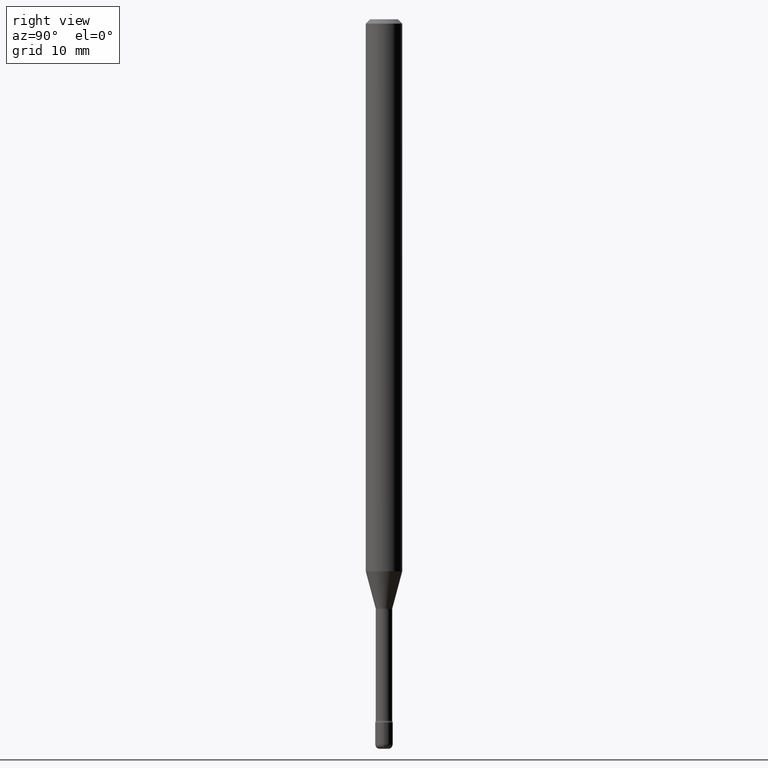
[diagram: clean part render]
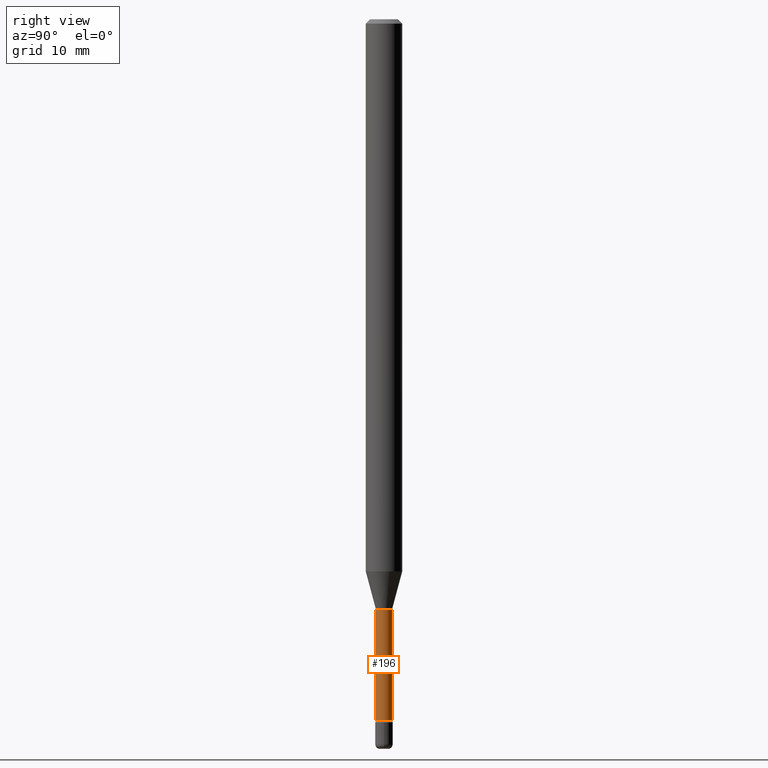
[diagram: same view with one face highlighted and labeled with its STEP entity id]
A machine part, right view. The second image highlights one B-rep face of the part: STEP entity #196.
In plain terms, the highlighted cylindrical surface (edge-blend (fillet) strip) has radius 0.7163 mm, axis along (-0, 0, 1).
Its self-contained STEP definition (entity closure, byte-faithful):
#1 = DIRECTION ( 'NONE',  ( -2.445549682807936912E-29, 3.491365518916084004E-15, 1.000000000000000000 ) ) ;
#3 = CARTESIAN_POINT ( 'NONE',  ( -1.169113584055446105E-44, 1.669184350826100908E-30, 4.780733988912460139E-16 ) ) ;
#71 = CARTESIAN_POINT ( 'NONE',  ( 4.944839800127768630E-29, -7.059453053068826895E-15, -2.021974787463811207 ) ) ;
#73 = EDGE_CURVE ( 'NONE', #337, #195, #118, .T. ) ;
#85 = EDGE_LOOP ( 'NONE', ( #356, #105, #541, #146 ) ) ;
#94 = FACE_OUTER_BOUND ( 'NONE', #85, .T. ) ;
#105 = ORIENTED_EDGE ( 'NONE', *, *, #73, .T. ) ;
#107 = DIRECTION ( 'NONE',  ( -2.445549682807936632E-29, 3.491365518916083609E-15, 1.000000000000000000 ) ) ;
#114 = CARTESIAN_POINT ( 'NONE',  ( 2.003730514843482726E-16, 0.02820000000000000631, 3.796168912578124951E-16 ) ) ;
#118 = LINE ( 'NONE', #114, #524 ) ;
#126 = DIRECTION ( 'NONE',  ( -6.982962677686265133E-15, -1.000000000000000000, 0.000000000000000000 ) ) ;
#128 = EDGE_CURVE ( 'NONE', #463, #195, #493, .T. ) ;
#139 = CARTESIAN_POINT ( 'NONE',  ( -1.969195475107527270E-16, -0.02820000000000000631, 5.765299065246797300E-16 ) ) ;
#141 = CIRCLE ( 'NONE', #529, 0.02820000000000000631 ) ;
#146 = ORIENTED_EDGE ( 'NONE', *, *, #267, .F. ) ;
#195 = VERTEX_POINT ( 'NONE', #518 ) ;
#196 = ADVANCED_FACE ( 'NONE', ( #94 ), #302, .T. ) ;
#200 = CARTESIAN_POINT ( 'NONE',  ( 2.067679361062481029E-16, 0.02819999999999161719, -2.402875394747777449 ) ) ;
#257 = CARTESIAN_POINT ( 'NONE',  ( 5.876351159452423787E-29, -8.389316299474264724E-15, -2.402875394747777449 ) ) ;
#267 = EDGE_CURVE ( 'NONE', #351, #463, #345, .T. ) ;
#272 = DIRECTION ( 'NONE',  ( -2.445549682807936632E-29, 3.491365518916083609E-15, 1.000000000000000000 ) ) ;
#285 = DIRECTION ( 'NONE',  ( -6.982962677686265133E-15, -1.000000000000000000, 0.000000000000000000 ) ) ;
#300 = DIRECTION ( 'NONE',  ( -2.445549682807936912E-29, 3.491365518916084004E-15, 1.000000000000000000 ) ) ;
#302 = CYLINDRICAL_SURFACE ( 'NONE', #371, 0.02820000000000000631 ) ;
#306 = VECTOR ( 'NONE', #272, 39.37007874015748143 ) ;
#307 = DIRECTION ( 'NONE',  ( -6.982962677686265133E-15, -1.000000000000000000, 3.491365518916085187E-15 ) ) ;
#337 = VERTEX_POINT ( 'NONE', #200 ) ;
#345 = LINE ( 'NONE', #139, #306 ) ;
#351 = VERTEX_POINT ( 'NONE', #373 ) ;
#356 = ORIENTED_EDGE ( 'NONE', *, *, #528, .T. ) ;
#371 = AXIS2_PLACEMENT_3D ( 'NONE', #3, #1, #307 ) ;
#373 = CARTESIAN_POINT ( 'NONE',  ( -1.969195475106939815E-16, -0.02820000000000839196, -2.402875394747777449 ) ) ;
#428 = CARTESIAN_POINT ( 'NONE',  ( -1.969195475107032506E-16, -0.02820000000000706317, -2.021974787463811207 ) ) ;
#463 = VERTEX_POINT ( 'NONE', #428 ) ;
#493 = CIRCLE ( 'NONE', #559, 0.02820000000000000284 ) ;
#500 = DIRECTION ( 'NONE',  ( -2.445549682807936912E-29, 3.491365518916084004E-15, 1.000000000000000000 ) ) ;
#518 = CARTESIAN_POINT ( 'NONE',  ( 2.003730514844070427E-16, 0.02819999999999294252, -2.021974787463811207 ) ) ;
#524 = VECTOR ( 'NONE', #107, 39.37007874015748143 ) ;
#528 = EDGE_CURVE ( 'NONE', #351, #337, #141, .T. ) ;
#529 = AXIS2_PLACEMENT_3D ( 'NONE', #257, #300, #126 ) ;
#541 = ORIENTED_EDGE ( 'NONE', *, *, #128, .F. ) ;
#559 = AXIS2_PLACEMENT_3D ( 'NONE', #71, #500, #285 ) ;